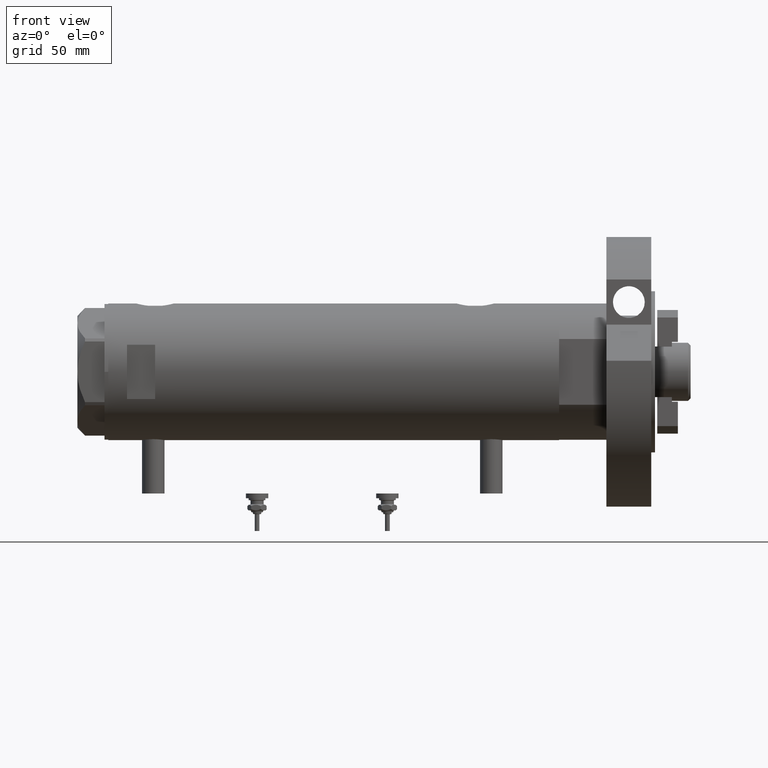
[diagram: clean part render]
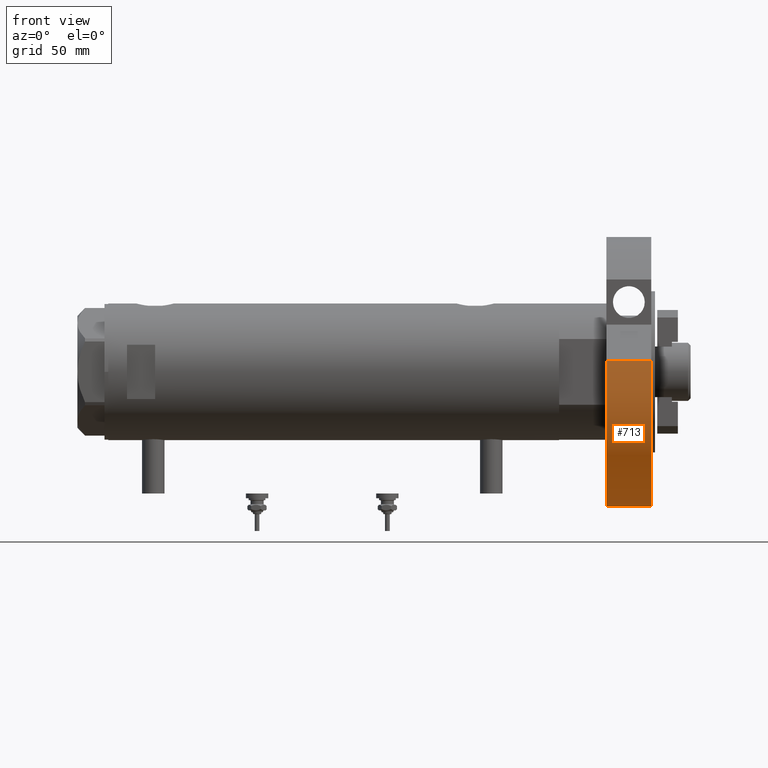
[diagram: same view with one face highlighted and labeled with its STEP entity id]
A machine part, front view. The second image highlights one B-rep face of the part: STEP entity #713.
In plain terms, the highlighted cylindrical surface (partial cylindrical patch) has radius 72 mm, axis along (-1, -0, 0).
Its self-contained STEP definition (entity closure, byte-faithful):
#63 = AXIS2_PLACEMENT_3D ( 'NONE', #3139, #3946, #4622 ) ;
#239 = VERTEX_POINT ( 'NONE', #2151 ) ;
#270 = ORIENTED_EDGE ( 'NONE', *, *, #8124, .F. ) ;
#636 = ORIENTED_EDGE ( 'NONE', *, *, #1898, .T. ) ;
#708 = DIRECTION ( 'NONE',  ( 1.000000000000000000, 0.000000000000000000, 0.000000000000000000 ) ) ;
#713 = ADVANCED_FACE ( 'NONE', ( #6391 ), #2006, .T. ) ;
#754 = CARTESIAN_POINT ( 'NONE',  ( 0.000000000000000000, 0.000000000000000000, 24.00000000000000000 ) ) ;
#1223 = CARTESIAN_POINT ( 'NONE',  ( -72.00000000000000000, 0.000000000000000000, 24.00000000000000000 ) ) ;
#1269 = ORIENTED_EDGE ( 'NONE', *, *, #7485, .F. ) ;
#1668 = DIRECTION ( 'NONE',  ( 0.000000000000000000, 0.000000000000000000, 1.000000000000000000 ) ) ;
#1898 = EDGE_CURVE ( 'NONE', #4736, #5365, #3007, .T. ) ;
#2006 = CYLINDRICAL_SURFACE ( 'NONE', #63, 72.00000000000000000 ) ;
#2151 = CARTESIAN_POINT ( 'NONE',  ( 5.949394898342027282, 71.75377830012563152, 24.00000000000000000 ) ) ;
#2470 = CARTESIAN_POINT ( 'NONE',  ( 0.000000000000000000, 0.000000000000000000, 0.000000000000000000 ) ) ;
#2487 = CARTESIAN_POINT ( 'NONE',  ( 5.949394898342027282, 71.75377830012563152, 0.000000000000000000 ) ) ;
#2518 = CARTESIAN_POINT ( 'NONE',  ( -72.00000000000000000, 0.000000000000000000, 24.00000000000000000 ) ) ;
#3007 = CIRCLE ( 'NONE', #7569, 72.00000000000000000 ) ;
#3081 = ORIENTED_EDGE ( 'NONE', *, *, #6583, .F. ) ;
#3139 = CARTESIAN_POINT ( 'NONE',  ( 0.000000000000000000, 0.000000000000000000, 24.00000000000000000 ) ) ;
#3368 = DIRECTION ( 'NONE',  ( 0.000000000000000000, 0.000000000000000000, 1.000000000000000000 ) ) ;
#3700 = LINE ( 'NONE', #2518, #8055 ) ;
#3946 = DIRECTION ( 'NONE',  ( -0.000000000000000000, -0.000000000000000000, -1.000000000000000000 ) ) ;
#4021 = CARTESIAN_POINT ( 'NONE',  ( 5.949394898342027282, 71.75377830012563152, 0.000000000000000000 ) ) ;
#4026 = AXIS2_PLACEMENT_3D ( 'NONE', #754, #3368, #708 ) ;
#4433 = LINE ( 'NONE', #2487, #7901 ) ;
#4622 = DIRECTION ( 'NONE',  ( -1.000000000000000000, 0.000000000000000000, 0.000000000000000000 ) ) ;
#4736 = VERTEX_POINT ( 'NONE', #4021 ) ;
#4888 = VERTEX_POINT ( 'NONE', #1223 ) ;
#5056 = DIRECTION ( 'NONE',  ( -0.000000000000000000, -0.000000000000000000, 1.000000000000000000 ) ) ;
#5330 = CARTESIAN_POINT ( 'NONE',  ( -72.00000000000000000, 0.000000000000000000, 0.000000000000000000 ) ) ;
#5365 = VERTEX_POINT ( 'NONE', #5330 ) ;
#5634 = DIRECTION ( 'NONE',  ( 1.000000000000000000, 0.000000000000000000, 0.000000000000000000 ) ) ;
#6174 = CIRCLE ( 'NONE', #4026, 72.00000000000000000 ) ;
#6389 = EDGE_LOOP ( 'NONE', ( #3081, #270, #1269, #636 ) ) ;
#6391 = FACE_OUTER_BOUND ( 'NONE', #6389, .T. ) ;
#6583 = EDGE_CURVE ( 'NONE', #4888, #5365, #3700, .T. ) ;
#7485 = EDGE_CURVE ( 'NONE', #4736, #239, #4433, .T. ) ;
#7569 = AXIS2_PLACEMENT_3D ( 'NONE', #2470, #1668, #5634 ) ;
#7600 = DIRECTION ( 'NONE',  ( -0.000000000000000000, -0.000000000000000000, -1.000000000000000000 ) ) ;
#7901 = VECTOR ( 'NONE', #5056, 1000.000000000000000 ) ;
#8055 = VECTOR ( 'NONE', #7600, 1000.000000000000000 ) ;
#8124 = EDGE_CURVE ( 'NONE', #239, #4888, #6174, .T. ) ;